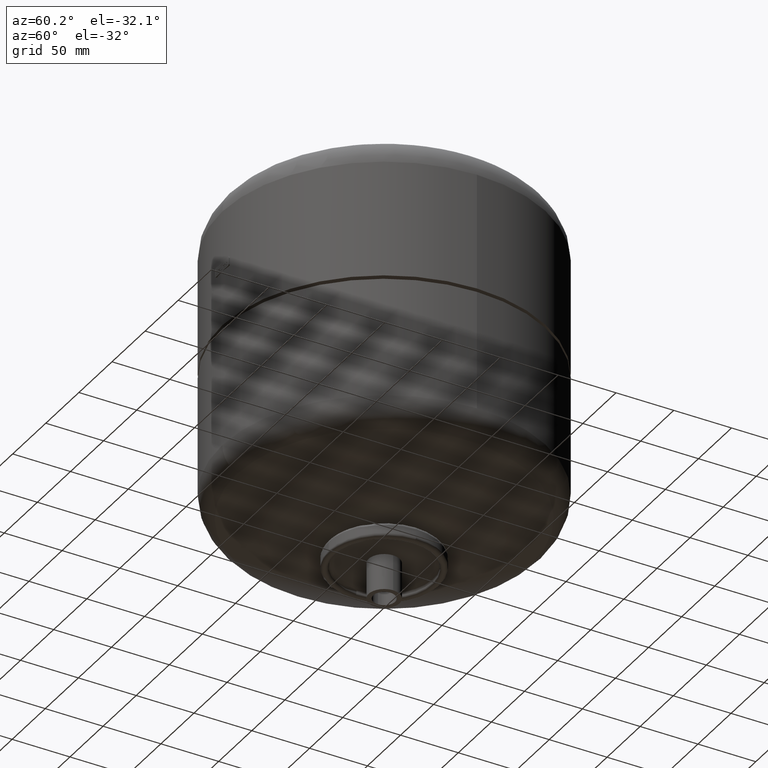
[diagram: clean part render]
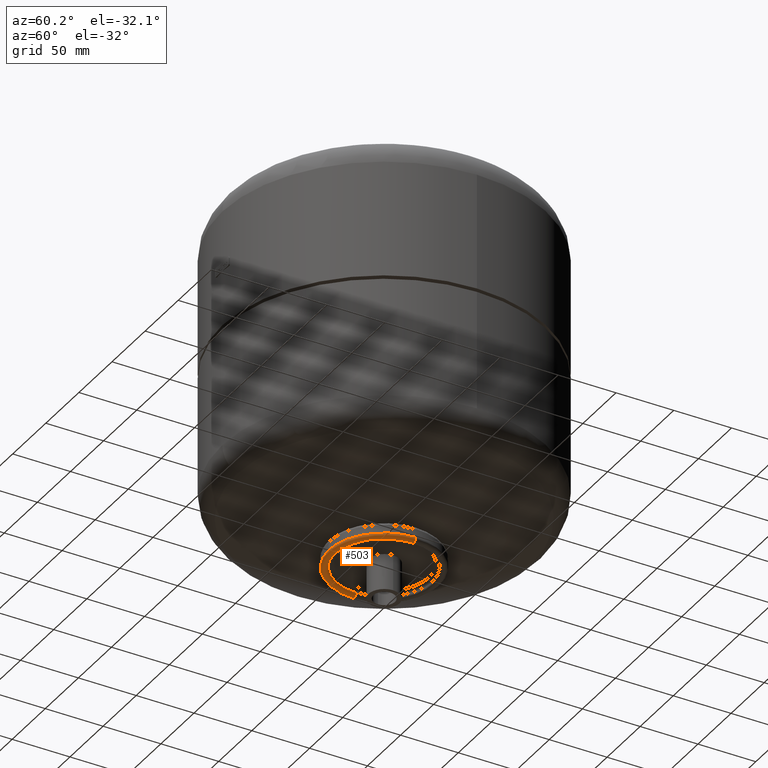
[diagram: same view with one face highlighted and labeled with its STEP entity id]
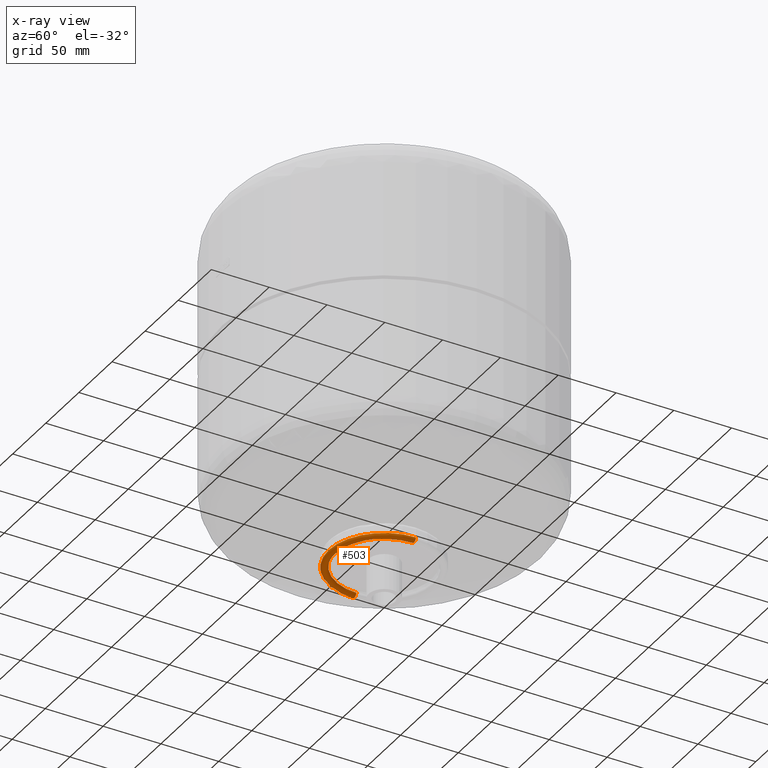
[diagram: x-ray of the same camera — body ghosted, the highlighted face saturated]
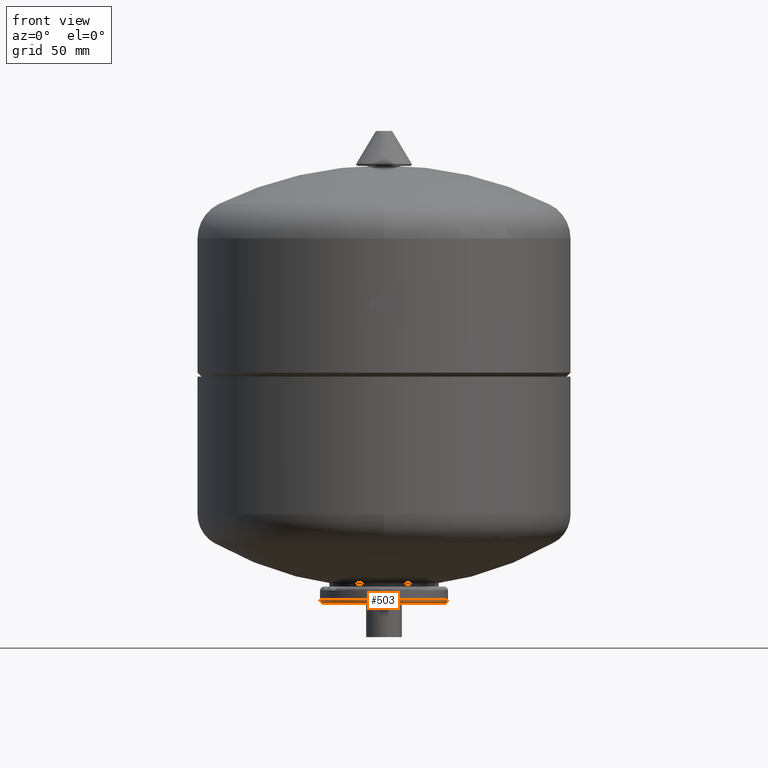
[diagram: same view with one face highlighted and labeled with its STEP entity id]
A machine part, auxiliary view. The second image highlights one B-rep face of the part: STEP entity #503.
The next image is the same camera in x-ray: the body ghosted, the highlighted face saturated — about 0% of this face is hidden behind the body in this view.
A second angle (front view) of the same face is appended — the face is thin or edge-on in the first view.
In plain terms, the highlighted toroidal blend (fillet) surface has major radius 45 mm and minor (blend) radius 3 mm.
Its self-contained STEP definition (entity closure, byte-faithful):
#141=CARTESIAN_POINT('',(-48.000000000000007,0.0,28.0));
#142=VERTEX_POINT('',#141);
#150=CARTESIAN_POINT('',(-5.878110E-015,-48.000000000000007,28.0));
#151=VERTEX_POINT('',#150);
#152=CARTESIAN_POINT('',(0.0,0.0,28.0));
#153=DIRECTION('',(0.0,0.0,-1.0));
#154=DIRECTION('',(0.0,1.0,0.0));
#155=AXIS2_PLACEMENT_3D('',#152,#153,#154);
#156=CIRCLE('',#155,48.000000000000007);
#157=EDGE_CURVE('',#151,#142,#156,.T.);
#408=CARTESIAN_POINT('',(-42.000000000000014,0.0,28.0));
#409=VERTEX_POINT('',#408);
#428=CARTESIAN_POINT('',(42.000000000000014,-5.143347E-015,28.0));
#429=VERTEX_POINT('',#428);
#465=CARTESIAN_POINT('',(0.0,0.0,28.0));
#466=DIRECTION('',(0.0,-1.045403E-016,-1.0));
#467=DIRECTION('',(-1.0,0.0,0.0));
#468=AXIS2_PLACEMENT_3D('',#465,#466,#467);
#469=TOROIDAL_SURFACE('',#468,45.000000000000007,3.000000000000000);
#470=CARTESIAN_POINT('',(-45.000000000000007,0.0,28.0));
#471=DIRECTION('',(0.0,1.0,0.0));
#472=DIRECTION('',(-1.0,0.0,0.0));
#473=AXIS2_PLACEMENT_3D('',#470,#471,#472);
#474=CIRCLE('',#473,3.000000000000000);
#475=EDGE_CURVE('',#409,#142,#474,.T.);
#476=ORIENTED_EDGE('',*,*,#475,.F.);
#477=CARTESIAN_POINT('',(0.0,0.0,28.0));
#478=DIRECTION('',(0.0,0.0,-1.0));
#479=DIRECTION('',(0.0,1.0,0.0));
#480=AXIS2_PLACEMENT_3D('',#477,#478,#479);
#481=CIRCLE('',#480,42.000000000000014);
#482=EDGE_CURVE('',#429,#409,#481,.T.);
#483=ORIENTED_EDGE('',*,*,#482,.F.);
#484=CARTESIAN_POINT('',(48.000000000000007,-5.878110E-015,28.0));
#485=VERTEX_POINT('',#484);
#486=CARTESIAN_POINT('',(45.000000000000007,-5.510729E-015,28.0));
#487=DIRECTION('',(0.0,-1.0,0.0));
#488=DIRECTION('',(1.0,0.0,0.0));
#489=AXIS2_PLACEMENT_3D('',#486,#487,#488);
#490=CIRCLE('',#489,3.000000000000000);
#491=EDGE_CURVE('',#429,#485,#490,.T.);
#492=ORIENTED_EDGE('',*,*,#491,.T.);
#493=CARTESIAN_POINT('',(0.0,0.0,28.0));
#494=DIRECTION('',(0.0,0.0,-1.0));
#495=DIRECTION('',(0.0,1.0,0.0));
#496=AXIS2_PLACEMENT_3D('',#493,#494,#495);
#497=CIRCLE('',#496,48.000000000000007);
#498=EDGE_CURVE('',#485,#151,#497,.T.);
#499=ORIENTED_EDGE('',*,*,#498,.T.);
#500=ORIENTED_EDGE('',*,*,#157,.T.);
#501=EDGE_LOOP('',(#476,#483,#492,#499,#500));
#502=FACE_OUTER_BOUND('',#501,.T.);
#503=ADVANCED_FACE('',(#502),#469,.T.);